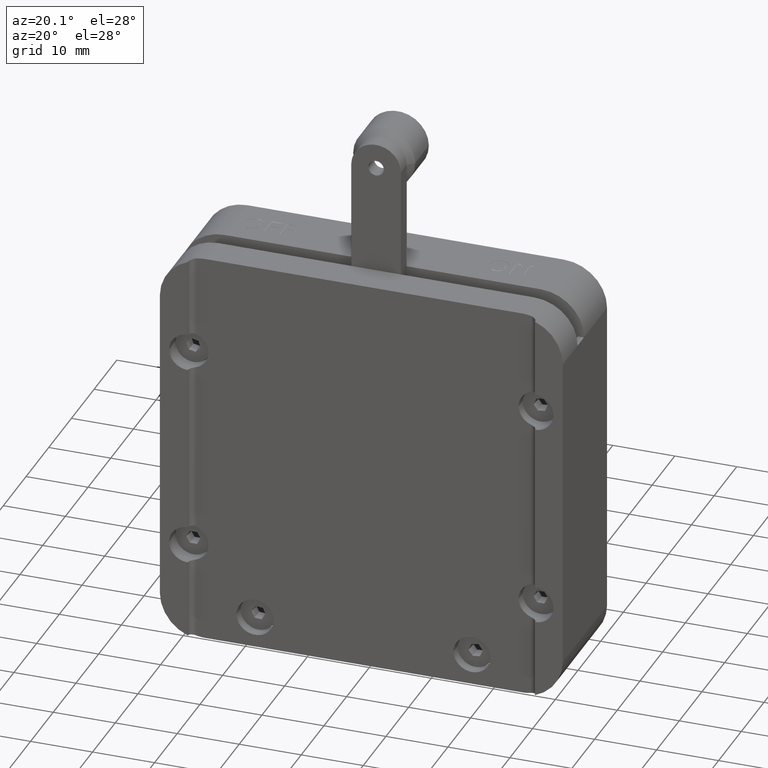
[diagram: clean part render]
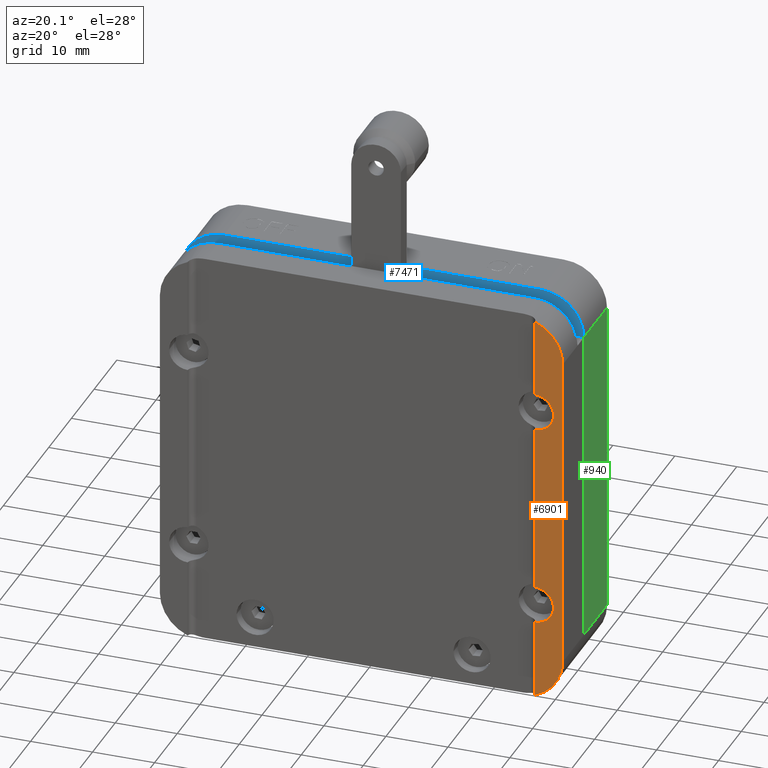
[diagram: same view with three faces highlighted in distinct colors, each labeled with its STEP entity id]
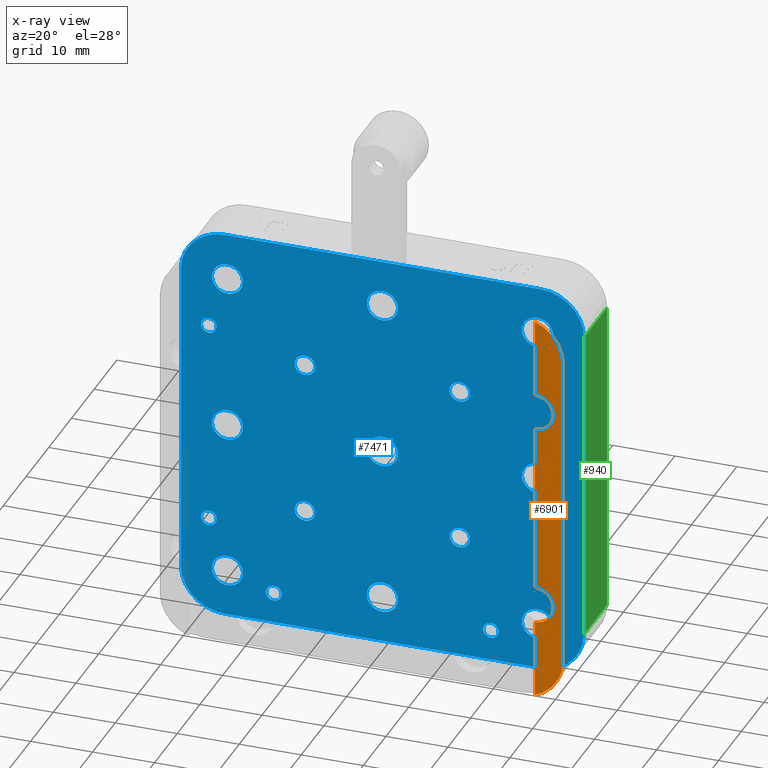
[diagram: x-ray of the same camera — body ghosted, the three highlighted faces saturated]
A machine part, auxiliary view with three faces highlighted in distinct colors.
The next image is the same camera in x-ray (body ghosted, the three faces saturated) — at least one of them is partly hidden behind the body in this view.
Their STEP definitions:

[orange] entity #6901 — the highlighted planar face has unit normal (0, -1, 0).
#67 = DIRECTION ( 'NONE',  ( 1.908195823574487800E-017, -1.000000000000000000, 6.288372600415925700E-018 ) ) ;
#209 = CARTESIAN_POINT ( 'NONE',  ( 28.00000000000000700, -3.500000000000003100, 13.49999999999995700 ) ) ;
#223 = LINE ( 'NONE', #5558, #6699 ) ;
#447 = CARTESIAN_POINT ( 'NONE',  ( 32.50000000000002800, -3.500000000000004400, 32.50000000000000700 ) ) ;
#503 = ORIENTED_EDGE ( 'NONE', *, *, #7377, .F. ) ;
#535 = ORIENTED_EDGE ( 'NONE', *, *, #8684, .T. ) ;
#580 = DIRECTION ( 'NONE',  ( 1.214306433183765000E-017, -1.000000000000000000, 6.288372600415925700E-018 ) ) ;
#623 = DIRECTION ( 'NONE',  ( -7.919758056827704300E-019, 3.252606517456511900E-019, 1.000000000000000000 ) ) ;
#716 = EDGE_LOOP ( 'NONE', ( #503, #3992, #7643, #4133, #1232, #535, #893, #10325, #4793, #4075 ) ) ;
#893 = ORIENTED_EDGE ( 'NONE', *, *, #6305, .F. ) ;
#904 = VERTEX_POINT ( 'NONE', #10563 ) ;
#1040 = CARTESIAN_POINT ( 'NONE',  ( 28.00000000000001400, -3.500000000000002700, -32.49999999999998600 ) ) ;
#1200 = VERTEX_POINT ( 'NONE', #5580 ) ;
#1232 = ORIENTED_EDGE ( 'NONE', *, *, #8308, .F. ) ;
#1236 = VERTEX_POINT ( 'NONE', #3943 ) ;
#1708 = CIRCLE ( 'NONE', #7330, 7.000000000000002700 ) ;
#2159 = CARTESIAN_POINT ( 'NONE',  ( 28.00000000000002500, -3.500000000000002700, -16.49999999999996400 ) ) ;
#2215 = CARTESIAN_POINT ( 'NONE',  ( 28.00000000000001800, -3.500000000000003600, 16.49999999999996400 ) ) ;
#2309 = DIRECTION ( 'NONE',  ( 1.214306433183765000E-017, -1.000000000000000000, 6.288372600415925700E-018 ) ) ;
#2350 = VERTEX_POINT ( 'NONE', #209 ) ;
#2480 = VECTOR ( 'NONE', #623, 1000.000000000000000 ) ;
#2538 = CARTESIAN_POINT ( 'NONE',  ( 25.50000000000001400, -3.500000000000002200, 25.49999999999999600 ) ) ;
#2546 = CIRCLE ( 'NONE', #3184, 3.000000000000009800 ) ;
#2728 = DIRECTION ( 'NONE',  ( -7.919758056827704300E-019, 3.252606517456511900E-019, 1.000000000000000000 ) ) ;
#2998 = AXIS2_PLACEMENT_3D ( 'NONE', #7358, #2309, #8209 ) ;
#3022 = DIRECTION ( 'NONE',  ( 1.000000000000000000, 0.0000000000000000000, 0.0000000000000000000 ) ) ;
#3088 = DIRECTION ( 'NONE',  ( -1.000000000000000000, 0.0000000000000000000, 0.0000000000000000000 ) ) ;
#3184 = AXIS2_PLACEMENT_3D ( 'NONE', #5655, #580, #6488 ) ;
#3308 = EDGE_CURVE ( 'NONE', #904, #2350, #10700, .T. ) ;
#3409 = DIRECTION ( 'NONE',  ( 0.0000000000000000000, 0.0000000000000000000, -1.000000000000000000 ) ) ;
#3791 = LINE ( 'NONE', #447, #7981 ) ;
#3943 = CARTESIAN_POINT ( 'NONE',  ( 28.00000000000001100, -3.500000000000004400, -19.49999999999997200 ) ) ;
#3950 = DIRECTION ( 'NONE',  ( 1.908195823574487800E-017, -1.000000000000000000, 7.047314121155775700E-018 ) ) ;
#3992 = ORIENTED_EDGE ( 'NONE', *, *, #3308, .F. ) ;
#4042 = EDGE_CURVE ( 'NONE', #5192, #1200, #4893, .T. ) ;
#4075 = ORIENTED_EDGE ( 'NONE', *, *, #4042, .F. ) ;
#4133 = ORIENTED_EDGE ( 'NONE', *, *, #9775, .F. ) ;
#4240 = EDGE_CURVE ( 'NONE', #7552, #8188, #1708, .T. ) ;
#4793 = ORIENTED_EDGE ( 'NONE', *, *, #8506, .F. ) ;
#4893 = CIRCLE ( 'NONE', #5868, 3.000000000000009800 ) ;
#4947 = CARTESIAN_POINT ( 'NONE',  ( 31.00000000000002500, -3.500000000000003600, 16.49999999999994700 ) ) ;
#5131 = CARTESIAN_POINT ( 'NONE',  ( 25.50000000000001100, -3.500000000000004000, -25.50000000000001100 ) ) ;
#5192 = VERTEX_POINT ( 'NONE', #4947 ) ;
#5558 = CARTESIAN_POINT ( 'NONE',  ( 28.00000000000001400, -3.500000000000002700, -32.49999999999998600 ) ) ;
#5580 = CARTESIAN_POINT ( 'NONE',  ( 28.00000000000001400, -3.500000000000004000, 19.49999999999997900 ) ) ;
#5643 = EDGE_CURVE ( 'NONE', #8096, #904, #6155, .T. ) ;
#5655 = CARTESIAN_POINT ( 'NONE',  ( 28.00000000000002500, -3.500000000000002700, -16.49999999999996400 ) ) ;
#5679 = AXIS2_PLACEMENT_3D ( 'NONE', #2159, #8061, #3022 ) ;
#5868 = AXIS2_PLACEMENT_3D ( 'NONE', #2215, #8119, #3088 ) ;
#5989 = DIRECTION ( 'NONE',  ( 0.0000000000000000000, 0.0000000000000000000, -1.000000000000000000 ) ) ;
#6004 = FACE_OUTER_BOUND ( 'NONE', #716, .T. ) ;
#6155 = CIRCLE ( 'NONE', #5679, 3.000000000000009800 ) ;
#6256 = VECTOR ( 'NONE', #2728, 1000.000000000000000 ) ;
#6305 = EDGE_CURVE ( 'NONE', #7552, #8207, #3791, .T. ) ;
#6488 = DIRECTION ( 'NONE',  ( 1.000000000000000000, 0.0000000000000000000, 0.0000000000000000000 ) ) ;
#6680 = VERTEX_POINT ( 'NONE', #8572 ) ;
#6699 = VECTOR ( 'NONE', #9808, 1000.000000000000000 ) ;
#6901 = ADVANCED_FACE ( 'NONE', ( #6004 ), #9794, .T. ) ;
#7080 = CARTESIAN_POINT ( 'NONE',  ( 28.00000000000001400, -3.500000000000003600, 32.03834841531100600 ) ) ;
#7330 = AXIS2_PLACEMENT_3D ( 'NONE', #2538, #8426, #3409 ) ;
#7358 = CARTESIAN_POINT ( 'NONE',  ( 28.00000000000001800, -3.500000000000003600, 16.49999999999996400 ) ) ;
#7377 = EDGE_CURVE ( 'NONE', #2350, #5192, #8206, .T. ) ;
#7552 = VERTEX_POINT ( 'NONE', #10105 ) ;
#7643 = ORIENTED_EDGE ( 'NONE', *, *, #5643, .F. ) ;
#7981 = VECTOR ( 'NONE', #10521, 1000.000000000000000 ) ;
#8061 = DIRECTION ( 'NONE',  ( 1.214306433183765000E-017, -1.000000000000000000, 6.288372600415925700E-018 ) ) ;
#8096 = VERTEX_POINT ( 'NONE', #8689 ) ;
#8119 = DIRECTION ( 'NONE',  ( 1.214306433183765000E-017, -1.000000000000000000, 6.288372600415925700E-018 ) ) ;
#8188 = VERTEX_POINT ( 'NONE', #7080 ) ;
#8206 = CIRCLE ( 'NONE', #2998, 3.000000000000009800 ) ;
#8207 = VERTEX_POINT ( 'NONE', #8848 ) ;
#8209 = DIRECTION ( 'NONE',  ( -1.000000000000000000, 0.0000000000000000000, 0.0000000000000000000 ) ) ;
#8308 = EDGE_CURVE ( 'NONE', #6680, #1236, #8947, .T. ) ;
#8426 = DIRECTION ( 'NONE',  ( 1.908195823574487800E-017, -1.000000000000000000, 6.288372600415925700E-018 ) ) ;
#8506 = EDGE_CURVE ( 'NONE', #1200, #8188, #223, .T. ) ;
#8572 = CARTESIAN_POINT ( 'NONE',  ( 28.00000000000001100, -3.500000000000004000, -32.03834841531102700 ) ) ;
#8648 = CIRCLE ( 'NONE', #10063, 7.000000000000002700 ) ;
#8684 = EDGE_CURVE ( 'NONE', #6680, #8207, #8648, .T. ) ;
#8688 = AXIS2_PLACEMENT_3D ( 'NONE', #8984, #3950, #9836 ) ;
#8689 = CARTESIAN_POINT ( 'NONE',  ( 31.00000000000003200, -3.500000000000002700, -16.49999999999996100 ) ) ;
#8848 = CARTESIAN_POINT ( 'NONE',  ( 32.50000000000002800, -3.500000000000006200, -25.50000000000001800 ) ) ;
#8947 = LINE ( 'NONE', #9909, #2480 ) ;
#8984 = CARTESIAN_POINT ( 'NONE',  ( -32.50000000000008500, -3.500000000000004000, 32.49999999999997200 ) ) ;
#9775 = EDGE_CURVE ( 'NONE', #1236, #8096, #2546, .T. ) ;
#9794 = PLANE ( 'NONE',  #8688 ) ;
#9808 = DIRECTION ( 'NONE',  ( -7.919758056827704300E-019, 3.252606517456511900E-019, 1.000000000000000000 ) ) ;
#9836 = DIRECTION ( 'NONE',  ( 7.682588831596500200E-019, -7.047314121155775700E-018, -1.000000000000000000 ) ) ;
#9909 = CARTESIAN_POINT ( 'NONE',  ( 28.00000000000001400, -3.500000000000002700, -32.49999999999998600 ) ) ;
#10063 = AXIS2_PLACEMENT_3D ( 'NONE', #5131, #67, #5989 ) ;
#10105 = CARTESIAN_POINT ( 'NONE',  ( 32.50000000000002800, -3.500000000000002700, 25.49999999999999300 ) ) ;
#10325 = ORIENTED_EDGE ( 'NONE', *, *, #4240, .T. ) ;
#10521 = DIRECTION ( 'NONE',  ( 7.682588831596500200E-019, -7.047314121155775700E-018, -1.000000000000000000 ) ) ;
#10563 = CARTESIAN_POINT ( 'NONE',  ( 28.00000000000001100, -3.500000000000004000, -13.49999999999995600 ) ) ;
#10700 = LINE ( 'NONE', #1040, #6256 ) ;

[blue] entity #7471 — the highlighted planar face has unit normal (0, 1, 0).
#72 = AXIS2_PLACEMENT_3D ( 'NONE', #554, #6470, #1408 ) ;
#103 = DIRECTION ( 'NONE',  ( -0.0000000000000000000, 1.000000000000000000, -0.0000000000000000000 ) ) ;
#105 = CARTESIAN_POINT ( 'NONE',  ( -5.984789395918149000E-014, 5.800000000000002500, -25.00000000000001800 ) ) ;
#107 = VERTEX_POINT ( 'NONE', #7105 ) ;
#108 = CARTESIAN_POINT ( 'NONE',  ( 25.00000000000013500, 5.800000000000002500, 27.49999999999976200 ) ) ;
#133 = AXIS2_PLACEMENT_3D ( 'NONE', #7970, #2928, #8821 ) ;
#143 = EDGE_CURVE ( 'NONE', #4777, #6405, #9358, .T. ) ;
#144 = FACE_BOUND ( 'NONE', #3117, .T. ) ;
#154 = DIRECTION ( 'NONE',  ( -0.0000000000000000000, 1.000000000000000000, -0.0000000000000000000 ) ) ;
#161 = DIRECTION ( 'NONE',  ( -0.0000000000000000000, 1.000000000000000000, -0.0000000000000000000 ) ) ;
#174 = ORIENTED_EDGE ( 'NONE', *, *, #9585, .T. ) ;
#194 = CARTESIAN_POINT ( 'NONE',  ( 12.49999999999989700, 5.800000000000000700, -12.50000000000001800 ) ) ;
#236 = ORIENTED_EDGE ( 'NONE', *, *, #4417, .F. ) ;
#270 = DIRECTION ( 'NONE',  ( 0.0000000000000000000, 0.0000000000000000000, 1.000000000000000000 ) ) ;
#292 = CIRCLE ( 'NONE', #5606, 1.249999999999990700 ) ;
#298 = ORIENTED_EDGE ( 'NONE', *, *, #143, .F. ) ;
#304 = VERTEX_POINT ( 'NONE', #6929 ) ;
#333 = DIRECTION ( 'NONE',  ( -0.0000000000000000000, -1.000000000000000000, -0.0000000000000000000 ) ) ;
#353 = AXIS2_PLACEMENT_3D ( 'NONE', #4328, #10213, #5181 ) ;
#371 = DIRECTION ( 'NONE',  ( 0.0000000000000000000, 0.0000000000000000000, 1.000000000000000000 ) ) ;
#424 = EDGE_CURVE ( 'NONE', #304, #9433, #7914, .T. ) ;
#431 = AXIS2_PLACEMENT_3D ( 'NONE', #9422, #4380, #10266 ) ;
#494 = ORIENTED_EDGE ( 'NONE', *, *, #3044, .F. ) ;
#499 = DIRECTION ( 'NONE',  ( -0.0000000000000000000, 1.000000000000000000, -0.0000000000000000000 ) ) ;
#502 = CIRCLE ( 'NONE', #2587, 1.249999999999990700 ) ;
#512 = AXIS2_PLACEMENT_3D ( 'NONE', #793, #6700, #1647 ) ;
#540 = EDGE_CURVE ( 'NONE', #809, #10042, #5435, .T. ) ;
#544 = VERTEX_POINT ( 'NONE', #7788 ) ;
#554 = CARTESIAN_POINT ( 'NONE',  ( -12.50000000000001400, 5.800000000000000700, -12.50000000000001800 ) ) ;
#581 = DIRECTION ( 'NONE',  ( 0.0000000000000000000, 0.0000000000000000000, -1.000000000000000000 ) ) ;
#589 = EDGE_LOOP ( 'NONE', ( #8693, #8280 ) ) ;
#603 = CARTESIAN_POINT ( 'NONE',  ( 25.00000000000013500, 5.800000000000002500, 24.99999999999976200 ) ) ;
#605 = ORIENTED_EDGE ( 'NONE', *, *, #7667, .F. ) ;
#648 = ORIENTED_EDGE ( 'NONE', *, *, #3692, .T. ) ;
#673 = FACE_OUTER_BOUND ( 'NONE', #6467, .T. ) ;
#675 = VERTEX_POINT ( 'NONE', #9661 ) ;
#702 = EDGE_CURVE ( 'NONE', #3905, #8132, #6985, .T. ) ;
#715 = DIRECTION ( 'NONE',  ( 0.0000000000000000000, 0.0000000000000000000, 1.000000000000000000 ) ) ;
#721 = VERTEX_POINT ( 'NONE', #7807 ) ;
#747 = CARTESIAN_POINT ( 'NONE',  ( -17.50000000000006000, 5.800000000000000700, -27.50000000000001100 ) ) ;
#793 = CARTESIAN_POINT ( 'NONE',  ( -5.984789395918149000E-014, 5.800000000000002500, -1.724140359010620200E-014 ) ) ;
#794 = VERTEX_POINT ( 'NONE', #7928 ) ;
#805 = ORIENTED_EDGE ( 'NONE', *, *, #3515, .T. ) ;
#809 = VERTEX_POINT ( 'NONE', #9621 ) ;
#817 = CIRCLE ( 'NONE', #10515, 2.499999999999998700 ) ;
#850 = CARTESIAN_POINT ( 'NONE',  ( -32.50000000000005700, 5.800000000000002500, 25.50000000000000000 ) ) ;
#852 = VERTEX_POINT ( 'NONE', #2102 ) ;
#891 = LINE ( 'NONE', #2336, #2874 ) ;
#905 = ORIENTED_EDGE ( 'NONE', *, *, #6380, .T. ) ;
#957 = DIRECTION ( 'NONE',  ( 0.0000000000000000000, 0.0000000000000000000, 1.000000000000000000 ) ) ;
#958 = AXIS2_PLACEMENT_3D ( 'NONE', #3599, #9472, #4432 ) ;
#968 = VERTEX_POINT ( 'NONE', #7346 ) ;
#982 = ORIENTED_EDGE ( 'NONE', *, *, #6363, .F. ) ;
#1037 = ORIENTED_EDGE ( 'NONE', *, *, #5896, .T. ) ;
#1056 = EDGE_CURVE ( 'NONE', #10042, #809, #6960, .T. ) ;
#1088 = CARTESIAN_POINT ( 'NONE',  ( -25.50000000000005300, 5.800000000000002500, -32.50000000000000000 ) ) ;
#1093 = EDGE_CURVE ( 'NONE', #6656, #1623, #502, .T. ) ;
#1101 = VERTEX_POINT ( 'NONE', #5349 ) ;
#1127 = DIRECTION ( 'NONE',  ( -1.000000000000000000, 0.0000000000000000000, 1.067522139062650400E-016 ) ) ;
#1204 = DIRECTION ( 'NONE',  ( -0.0000000000000000000, 1.000000000000000000, -0.0000000000000000000 ) ) ;
#1226 = EDGE_LOOP ( 'NONE', ( #3727, #4276 ) ) ;
#1233 = DIRECTION ( 'NONE',  ( -0.0000000000000000000, 1.000000000000000000, -0.0000000000000000000 ) ) ;
#1305 = ORIENTED_EDGE ( 'NONE', *, *, #3221, .F. ) ;
#1320 = ORIENTED_EDGE ( 'NONE', *, *, #5991, .T. ) ;
#1329 = EDGE_CURVE ( 'NONE', #675, #3286, #9855, .T. ) ;
#1356 = AXIS2_PLACEMENT_3D ( 'NONE', #3872, #9748, #4704 ) ;
#1408 = DIRECTION ( 'NONE',  ( 0.0000000000000000000, 0.0000000000000000000, 1.000000000000000000 ) ) ;
#1453 = DIRECTION ( 'NONE',  ( 0.0000000000000000000, 0.0000000000000000000, 1.000000000000000000 ) ) ;
#1461 = AXIS2_PLACEMENT_3D ( 'NONE', #2790, #8680, #3657 ) ;
#1492 = DIRECTION ( 'NONE',  ( -0.0000000000000000000, 1.000000000000000000, -0.0000000000000000000 ) ) ;
#1495 = DIRECTION ( 'NONE',  ( -0.0000000000000000000, -1.000000000000000000, -0.0000000000000000000 ) ) ;
#1501 = ORIENTED_EDGE ( 'NONE', *, *, #1093, .F. ) ;
#1510 = CIRCLE ( 'NONE', #431, 1.649999999999997000 ) ;
#1544 = CARTESIAN_POINT ( 'NONE',  ( 17.49999999999994300, 5.800000000000000700, -27.50000000000001100 ) ) ;
#1583 = ORIENTED_EDGE ( 'NONE', *, *, #3413, .F. ) ;
#1598 = DIRECTION ( 'NONE',  ( 0.0000000000000000000, 0.0000000000000000000, -1.000000000000000000 ) ) ;
#1619 = CARTESIAN_POINT ( 'NONE',  ( -12.50000000000001400, 5.800000000000000700, 14.14999999999998100 ) ) ;
#1623 = VERTEX_POINT ( 'NONE', #2954 ) ;
#1647 = DIRECTION ( 'NONE',  ( 0.0000000000000000000, -0.0000000000000000000, 1.000000000000000000 ) ) ;
#1691 = CIRCLE ( 'NONE', #5008, 2.499999999999998700 ) ;
#1736 = EDGE_CURVE ( 'NONE', #721, #10703, #4570, .T. ) ;
#1751 = CARTESIAN_POINT ( 'NONE',  ( 12.49999999999989700, 5.800000000000000700, -10.85000000000002100 ) ) ;
#1859 = FACE_BOUND ( 'NONE', #6456, .T. ) ;
#1900 = EDGE_LOOP ( 'NONE', ( #805, #1037 ) ) ;
#1949 = ORIENTED_EDGE ( 'NONE', *, *, #4976, .T. ) ;
#1957 = AXIS2_PLACEMENT_3D ( 'NONE', #4100, #9978, #4945 ) ;
#1976 = DIRECTION ( 'NONE',  ( -0.0000000000000000000, -1.000000000000000000, -0.0000000000000000000 ) ) ;
#1982 = EDGE_LOOP ( 'NONE', ( #1305, #2034 ) ) ;
#2034 = ORIENTED_EDGE ( 'NONE', *, *, #10886, .F. ) ;
#2089 = VERTEX_POINT ( 'NONE', #4630 ) ;
#2090 = CIRCLE ( 'NONE', #5807, 1.249999999999987100 ) ;
#2102 = CARTESIAN_POINT ( 'NONE',  ( 25.49999999999995000, 5.800000000000002500, 32.49999999999999300 ) ) ;
#2129 = FACE_BOUND ( 'NONE', #9018, .T. ) ;
#2153 = EDGE_CURVE ( 'NONE', #9285, #3491, #4231, .T. ) ;
#2155 = AXIS2_PLACEMENT_3D ( 'NONE', #4670, #9714, #3847 ) ;
#2173 = ORIENTED_EDGE ( 'NONE', *, *, #1736, .F. ) ;
#2179 = AXIS2_PLACEMENT_3D ( 'NONE', #10349, #5339, #270 ) ;
#2192 = AXIS2_PLACEMENT_3D ( 'NONE', #10787, #5793, #715 ) ;
#2214 = CARTESIAN_POINT ( 'NONE',  ( -32.50000000000005700, 5.800000000000002500, 32.50000000000000000 ) ) ;
#2230 = VERTEX_POINT ( 'NONE', #7661 ) ;
#2277 = CIRCLE ( 'NONE', #6864, 2.499999999999998700 ) ;
#2296 = ORIENTED_EDGE ( 'NONE', *, *, #10337, .F. ) ;
#2336 = CARTESIAN_POINT ( 'NONE',  ( 32.49999999999994300, 5.800000000000002500, 32.49999999999999300 ) ) ;
#2386 = DIRECTION ( 'NONE',  ( 0.0000000000000000000, 0.0000000000000000000, -1.000000000000000000 ) ) ;
#2393 = FACE_BOUND ( 'NONE', #6033, .T. ) ;
#2413 = AXIS2_PLACEMENT_3D ( 'NONE', #6561, #1495, #7398 ) ;
#2531 = ORIENTED_EDGE ( 'NONE', *, *, #702, .T. ) ;
#2574 = CIRCLE ( 'NONE', #5965, 2.499999999999998700 ) ;
#2587 = AXIS2_PLACEMENT_3D ( 'NONE', #7030, #1976, #7875 ) ;
#2649 = CARTESIAN_POINT ( 'NONE',  ( 27.99999999999994300, 5.800000000000000700, -17.75000000000001100 ) ) ;
#2699 = CIRCLE ( 'NONE', #10434, 1.249999999999990700 ) ;
#2752 = CIRCLE ( 'NONE', #4396, 2.499999999999998700 ) ;
#2790 = CARTESIAN_POINT ( 'NONE',  ( 12.49999999999989700, 5.800000000000000700, -12.50000000000001800 ) ) ;
#2826 = CIRCLE ( 'NONE', #8110, 2.499999999999997300 ) ;
#2874 = VECTOR ( 'NONE', #4847, 1000.000000000000000 ) ;
#2919 = FACE_BOUND ( 'NONE', #589, .T. ) ;
#2926 = LINE ( 'NONE', #5897, #6101 ) ;
#2928 = DIRECTION ( 'NONE',  ( -0.0000000000000000000, 1.000000000000000000, -0.0000000000000000000 ) ) ;
#2954 = CARTESIAN_POINT ( 'NONE',  ( 27.99999999999994300, 5.800000000000000700, -15.25000000000003000 ) ) ;
#2958 = CIRCLE ( 'NONE', #10144, 7.000000000000002700 ) ;
#3003 = CIRCLE ( 'NONE', #6696, 1.649999999999997000 ) ;
#3044 = EDGE_CURVE ( 'NONE', #7688, #852, #891, .T. ) ;
#3100 = EDGE_CURVE ( 'NONE', #8087, #544, #7022, .T. ) ;
#3117 = EDGE_LOOP ( 'NONE', ( #1583, #298 ) ) ;
#3124 = ORIENTED_EDGE ( 'NONE', *, *, #1329, .T. ) ;
#3127 = DIRECTION ( 'NONE',  ( -0.0000000000000000000, 1.000000000000000000, -0.0000000000000000000 ) ) ;
#3138 = VERTEX_POINT ( 'NONE', #7460 ) ;
#3162 = VERTEX_POINT ( 'NONE', #8300 ) ;
#3171 = DIRECTION ( 'NONE',  ( -0.0000000000000000000, -1.000000000000000000, -0.0000000000000000000 ) ) ;
#3217 = EDGE_LOOP ( 'NONE', ( #6512, #10056 ) ) ;
#3221 = EDGE_CURVE ( 'NONE', #6543, #5138, #292, .T. ) ;
#3248 = LINE ( 'NONE', #2214, #9687 ) ;
#3286 = VERTEX_POINT ( 'NONE', #108 ) ;
#3335 = CARTESIAN_POINT ( 'NONE',  ( 12.49999999999989700, 5.800000000000000700, 12.49999999999998400 ) ) ;
#3406 = DIRECTION ( 'NONE',  ( -0.0000000000000000000, 1.000000000000000000, -0.0000000000000000000 ) ) ;
#3413 = EDGE_CURVE ( 'NONE', #6405, #4777, #9660, .T. ) ;
#3458 = VERTEX_POINT ( 'NONE', #4977 ) ;
#3491 = VERTEX_POINT ( 'NONE', #1619 ) ;
#3515 = EDGE_CURVE ( 'NONE', #6762, #7305, #2277, .T. ) ;
#3578 = CARTESIAN_POINT ( 'NONE',  ( 12.49999999999989700, 5.800000000000000700, 14.14999999999998100 ) ) ;
#3599 = CARTESIAN_POINT ( 'NONE',  ( 24.99999999999978300, 5.800000000000002500, -25.00000000000001800 ) ) ;
#3632 = CARTESIAN_POINT ( 'NONE',  ( -25.00000000000008200, 5.800000000000002500, 22.49999999999998600 ) ) ;
#3647 = AXIS2_PLACEMENT_3D ( 'NONE', #9766, #4715, #10592 ) ;
#3657 = DIRECTION ( 'NONE',  ( 0.0000000000000000000, 0.0000000000000000000, 1.000000000000000000 ) ) ;
#3692 = EDGE_CURVE ( 'NONE', #3138, #9433, #10166, .T. ) ;
#3727 = ORIENTED_EDGE ( 'NONE', *, *, #8666, .T. ) ;
#3738 = CIRCLE ( 'NONE', #2413, 7.000000000000002700 ) ;
#3752 = DIRECTION ( 'NONE',  ( -0.0000000000000000000, -1.000000000000000000, -0.0000000000000000000 ) ) ;
#3772 = DIRECTION ( 'NONE',  ( -0.0000000000000000000, 1.000000000000000000, -0.0000000000000000000 ) ) ;
#3847 = DIRECTION ( 'NONE',  ( 0.0000000000000000000, 0.0000000000000000000, -1.000000000000000000 ) ) ;
#3872 = CARTESIAN_POINT ( 'NONE',  ( -25.50000000000005300, 5.800000000000002500, -25.50000000000000400 ) ) ;
#3905 = VERTEX_POINT ( 'NONE', #4494 ) ;
#3947 = VERTEX_POINT ( 'NONE', #9619 ) ;
#3951 = AXIS2_PLACEMENT_3D ( 'NONE', #3335, #9219, #4179 ) ;
#3970 = AXIS2_PLACEMENT_3D ( 'NONE', #6271, #1204, #7101 ) ;
#4010 = AXIS2_PLACEMENT_3D ( 'NONE', #194, #154, #6913 ) ;
#4016 = AXIS2_PLACEMENT_3D ( 'NONE', #10656, #5656, #581 ) ;
#4053 = DIRECTION ( 'NONE',  ( -0.0000000000000000000, 1.000000000000000000, -0.0000000000000000000 ) ) ;
#4093 = AXIS2_PLACEMENT_3D ( 'NONE', #603, #6513, #1453 ) ;
#4099 = CARTESIAN_POINT ( 'NONE',  ( -28.00000000000006000, 5.800000000000000700, -16.50000000000002100 ) ) ;
#4100 = CARTESIAN_POINT ( 'NONE',  ( -28.00000000000006000, 5.800000000000000700, -16.50000000000002100 ) ) ;
#4120 = FACE_BOUND ( 'NONE', #1900, .T. ) ;
#4179 = DIRECTION ( 'NONE',  ( 0.0000000000000000000, 0.0000000000000000000, 1.000000000000000000 ) ) ;
#4187 = DIRECTION ( 'NONE',  ( 0.0000000000000000000, 0.0000000000000000000, -1.000000000000000000 ) ) ;
#4197 = EDGE_CURVE ( 'NONE', #5415, #7002, #6988, .T. ) ;
#4231 = CIRCLE ( 'NONE', #7200, 1.649999999999997000 ) ;
#4239 = VERTEX_POINT ( 'NONE', #850 ) ;
#4260 = AXIS2_PLACEMENT_3D ( 'NONE', #6297, #1233, #7126 ) ;
#4276 = ORIENTED_EDGE ( 'NONE', *, *, #4197, .T. ) ;
#4286 = CARTESIAN_POINT ( 'NONE',  ( -28.00000000000006000, 5.800000000000000700, 16.49999999999998600 ) ) ;
#4328 = CARTESIAN_POINT ( 'NONE',  ( 24.99999999999994300, 5.800000000000002500, -1.724140359010620200E-014 ) ) ;
#4369 = FACE_BOUND ( 'NONE', #8952, .T. ) ;
#4371 = ORIENTED_EDGE ( 'NONE', *, *, #5754, .T. ) ;
#4380 = DIRECTION ( 'NONE',  ( -0.0000000000000000000, 1.000000000000000000, -0.0000000000000000000 ) ) ;
#4391 = EDGE_LOOP ( 'NONE', ( #5361, #6930 ) ) ;
#4396 = AXIS2_PLACEMENT_3D ( 'NONE', #105, #6032, #957 ) ;
#4397 = VERTEX_POINT ( 'NONE', #10365 ) ;
#4401 = DIRECTION ( 'NONE',  ( -0.0000000000000000000, 1.000000000000000000, -0.0000000000000000000 ) ) ;
#4417 = EDGE_CURVE ( 'NONE', #3162, #2089, #2090, .T. ) ;
#4423 = CIRCLE ( 'NONE', #133, 2.499999999999998700 ) ;
#4432 = DIRECTION ( 'NONE',  ( 0.0000000000000000000, 0.0000000000000000000, 1.000000000000000000 ) ) ;
#4468 = CARTESIAN_POINT ( 'NONE',  ( -5.984789395918149000E-014, 5.800000000000002500, -1.724140359010620200E-014 ) ) ;
#4494 = CARTESIAN_POINT ( 'NONE',  ( 24.99999999999978300, 5.800000000000002500, -22.50000000000002100 ) ) ;
#4499 = DIRECTION ( 'NONE',  ( -0.0000000000000000000, -1.000000000000000000, -0.0000000000000000000 ) ) ;
#4544 = EDGE_CURVE ( 'NONE', #9543, #8503, #1691, .T. ) ;
#4554 = VERTEX_POINT ( 'NONE', #7635 ) ;
#4556 = CIRCLE ( 'NONE', #353, 2.499999999999998700 ) ;
#4566 = ORIENTED_EDGE ( 'NONE', *, *, #7407, .T. ) ;
#4570 = CIRCLE ( 'NONE', #1957, 1.249999999999990700 ) ;
#4598 = CIRCLE ( 'NONE', #3647, 1.249999999999987100 ) ;
#4608 = CARTESIAN_POINT ( 'NONE',  ( -5.954173225939465200E-014, 5.800000000000002500, -27.50000000000001800 ) ) ;
#4630 = CARTESIAN_POINT ( 'NONE',  ( -17.50000000000006000, 5.800000000000000700, -28.74999999999999600 ) ) ;
#4638 = FACE_BOUND ( 'NONE', #1226, .T. ) ;
#4659 = AXIS2_PLACEMENT_3D ( 'NONE', #8155, #3127, #9001 ) ;
#4670 = CARTESIAN_POINT ( 'NONE',  ( 17.49999999999994300, 5.800000000000000700, -27.50000000000001100 ) ) ;
#4693 = VERTEX_POINT ( 'NONE', #4608 ) ;
#4704 = DIRECTION ( 'NONE',  ( 0.0000000000000000000, 0.0000000000000000000, 1.000000000000000000 ) ) ;
#4715 = DIRECTION ( 'NONE',  ( -0.0000000000000000000, -1.000000000000000000, -0.0000000000000000000 ) ) ;
#4714 = AXIS2_PLACEMENT_3D ( 'NONE', #9441, #4401, #10286 ) ;
#4736 = CARTESIAN_POINT ( 'NONE',  ( -5.954173225939465200E-014, 5.800000000000002500, 22.49999999999998600 ) ) ;
#4776 = CIRCLE ( 'NONE', #9971, 2.499999999999998700 ) ;
#4777 = VERTEX_POINT ( 'NONE', #8987 ) ;
#4797 = AXIS2_PLACEMENT_3D ( 'NONE', #4099, #9976, #4942 ) ;
#4847 = DIRECTION ( 'NONE',  ( 1.000000000000000000, -0.0000000000000000000, -1.067522139062650400E-016 ) ) ;
#4873 = DIRECTION ( 'NONE',  ( -0.0000000000000000000, -1.000000000000000000, -0.0000000000000000000 ) ) ;
#4908 = FACE_BOUND ( 'NONE', #7886, .T. ) ;
#4912 = EDGE_CURVE ( 'NONE', #10703, #721, #8145, .T. ) ;
#4942 = DIRECTION ( 'NONE',  ( 0.0000000000000000000, 0.0000000000000000000, -1.000000000000000000 ) ) ;
#4945 = DIRECTION ( 'NONE',  ( 0.0000000000000000000, 0.0000000000000000000, -1.000000000000000000 ) ) ;
#4955 = VERTEX_POINT ( 'NONE', #10841 ) ;
#4976 = EDGE_CURVE ( 'NONE', #544, #8087, #5118, .T. ) ;
#4977 = CARTESIAN_POINT ( 'NONE',  ( -5.954173225939465200E-014, 5.800000000000002500, -2.500000000000014700 ) ) ;
#5008 = AXIS2_PLACEMENT_3D ( 'NONE', #5172, #103, #6031 ) ;
#5011 = DIRECTION ( 'NONE',  ( -0.0000000000000000000, 1.000000000000000000, -0.0000000000000000000 ) ) ;
#5114 = CARTESIAN_POINT ( 'NONE',  ( 32.49999999999994300, 5.800000000000002500, -32.50000000000000700 ) ) ;
#5118 = CIRCLE ( 'NONE', #8740, 2.499999999999998700 ) ;
#5138 = VERTEX_POINT ( 'NONE', #9725 ) ;
#5142 = DIRECTION ( 'NONE',  ( 0.0000000000000000000, 0.0000000000000000000, -1.000000000000000000 ) ) ;
#5166 = FACE_BOUND ( 'NONE', #6873, .T. ) ;
#5168 = ORIENTED_EDGE ( 'NONE', *, *, #10167, .T. ) ;
#5172 = CARTESIAN_POINT ( 'NONE',  ( -5.984789395918149000E-014, 5.800000000000002500, 24.99999999999998600 ) ) ;
#5181 = DIRECTION ( 'NONE',  ( 0.0000000000000000000, 0.0000000000000000000, 1.000000000000000000 ) ) ;
#5236 = CARTESIAN_POINT ( 'NONE',  ( -25.00000000000006000, 5.800000000000002500, -1.724140359010620200E-014 ) ) ;
#5339 = DIRECTION ( 'NONE',  ( -0.0000000000000000000, 1.000000000000000000, -0.0000000000000000000 ) ) ;
#5340 = DIRECTION ( 'NONE',  ( 0.0000000000000000000, 0.0000000000000000000, 1.000000000000000000 ) ) ;
#5349 = CARTESIAN_POINT ( 'NONE',  ( 24.99999999999994300, 5.800000000000002500, 2.499999999999981300 ) ) ;
#5361 = ORIENTED_EDGE ( 'NONE', *, *, #1056, .T. ) ;
#5406 = CARTESIAN_POINT ( 'NONE',  ( 25.49999999999995000, 5.800000000000002500, -25.50000000000001100 ) ) ;
#5410 = CIRCLE ( 'NONE', #10597, 6.999999999999999100 ) ;
#5415 = VERTEX_POINT ( 'NONE', #8678 ) ;
#5435 = CIRCLE ( 'NONE', #4010, 1.649999999999997000 ) ;
#5448 = DIRECTION ( 'NONE',  ( -0.0000000000000000000, 1.000000000000000000, -0.0000000000000000000 ) ) ;
#5466 = CIRCLE ( 'NONE', #10174, 1.649999999999997000 ) ;
#5490 = EDGE_CURVE ( 'NONE', #3458, #968, #8633, .T. ) ;
#5577 = CARTESIAN_POINT ( 'NONE',  ( -12.50000000000001400, 5.800000000000000700, 12.49999999999998400 ) ) ;
#5606 = AXIS2_PLACEMENT_3D ( 'NONE', #4286, #10168, #5142 ) ;
#5615 = ORIENTED_EDGE ( 'NONE', *, *, #7313, .T. ) ;
#5656 = DIRECTION ( 'NONE',  ( -0.0000000000000000000, -1.000000000000000000, -0.0000000000000000000 ) ) ;
#5754 = EDGE_CURVE ( 'NONE', #1101, #4397, #4556, .T. ) ;
#5793 = DIRECTION ( 'NONE',  ( -0.0000000000000000000, 1.000000000000000000, -0.0000000000000000000 ) ) ;
#5807 = AXIS2_PLACEMENT_3D ( 'NONE', #747, #6651, #1598 ) ;
#5876 = ORIENTED_EDGE ( 'NONE', *, *, #2153, .T. ) ;
#5896 = EDGE_CURVE ( 'NONE', #7305, #6762, #4423, .T. ) ;
#5897 = CARTESIAN_POINT ( 'NONE',  ( 32.49999999999994300, 5.800000000000002500, 32.49999999999999300 ) ) ;
#5965 = AXIS2_PLACEMENT_3D ( 'NONE', #10450, #5448, #371 ) ;
#5991 = EDGE_CURVE ( 'NONE', #4554, #107, #9043, .T. ) ;
#6031 = DIRECTION ( 'NONE',  ( 0.0000000000000000000, 0.0000000000000000000, 1.000000000000000000 ) ) ;
#6032 = DIRECTION ( 'NONE',  ( -0.0000000000000000000, 1.000000000000000000, -0.0000000000000000000 ) ) ;
#6033 = EDGE_LOOP ( 'NONE', ( #9839, #5876 ) ) ;
#6087 = DIRECTION ( 'NONE',  ( 0.0000000000000000000, 0.0000000000000000000, 1.000000000000000000 ) ) ;
#6101 = VECTOR ( 'NONE', #4187, 1000.000000000000000 ) ;
#6139 = CIRCLE ( 'NONE', #4714, 2.499999999999998700 ) ;
#6215 = CIRCLE ( 'NONE', #8411, 1.249999999999990700 ) ;
#6236 = EDGE_CURVE ( 'NONE', #8132, #3905, #2574, .T. ) ;
#6243 = DIRECTION ( 'NONE',  ( 0.0000000000000000000, 0.0000000000000000000, 1.000000000000000000 ) ) ;
#6271 = CARTESIAN_POINT ( 'NONE',  ( -5.984789395918149000E-014, 5.800000000000002500, -1.724140359010620200E-014 ) ) ;
#6297 = CARTESIAN_POINT ( 'NONE',  ( 24.99999999999994300, 5.800000000000002500, -1.724140359010620200E-014 ) ) ;
#6361 = FACE_BOUND ( 'NONE', #3217, .T. ) ;
#6363 = EDGE_CURVE ( 'NONE', #3138, #4239, #3248, .T. ) ;
#6380 = EDGE_CURVE ( 'NONE', #8112, #3947, #9955, .T. ) ;
#6405 = VERTEX_POINT ( 'NONE', #8149 ) ;
#6414 = DIRECTION ( 'NONE',  ( 0.0000000000000000000, 0.0000000000000000000, 1.000000000000000000 ) ) ;
#6456 = EDGE_LOOP ( 'NONE', ( #10457, #7438 ) ) ;
#6467 = EDGE_LOOP ( 'NONE', ( #2296, #4566, #494, #174, #982, #648, #7065, #8326 ) ) ;
#6468 = EDGE_CURVE ( 'NONE', #2230, #10476, #2699, .T. ) ;
#6470 = DIRECTION ( 'NONE',  ( -0.0000000000000000000, 1.000000000000000000, -0.0000000000000000000 ) ) ;
#6512 = ORIENTED_EDGE ( 'NONE', *, *, #7949, .T. ) ;
#6513 = DIRECTION ( 'NONE',  ( -0.0000000000000000000, 1.000000000000000000, -0.0000000000000000000 ) ) ;
#6518 = CARTESIAN_POINT ( 'NONE',  ( -25.00000000000006000, 5.800000000000002500, -2.500000000000016000 ) ) ;
#6543 = VERTEX_POINT ( 'NONE', #10781 ) ;
#6559 = CARTESIAN_POINT ( 'NONE',  ( -25.00000000000008200, 5.800000000000002500, -25.00000000000001800 ) ) ;
#6561 = CARTESIAN_POINT ( 'NONE',  ( 25.49999999999995000, 5.800000000000002500, 25.49999999999999300 ) ) ;
#6607 = CIRCLE ( 'NONE', #4260, 2.499999999999998700 ) ;
#6625 = FACE_BOUND ( 'NONE', #1982, .T. ) ;
#6651 = DIRECTION ( 'NONE',  ( -0.0000000000000000000, -1.000000000000000000, -0.0000000000000000000 ) ) ;
#6655 = EDGE_CURVE ( 'NONE', #3947, #8112, #1510, .T. ) ;
#6656 = VERTEX_POINT ( 'NONE', #2649 ) ;
#6696 = AXIS2_PLACEMENT_3D ( 'NONE', #8421, #3406, #9282 ) ;
#6700 = DIRECTION ( 'NONE',  ( 0.0000000000000000000, 1.000000000000000000, 0.0000000000000000000 ) ) ;
#6762 = VERTEX_POINT ( 'NONE', #9457 ) ;
#6864 = AXIS2_PLACEMENT_3D ( 'NONE', #5236, #161, #6087 ) ;
#6873 = EDGE_LOOP ( 'NONE', ( #2531, #8596 ) ) ;
#6906 = EDGE_LOOP ( 'NONE', ( #1949, #8364 ) ) ;
#6913 = DIRECTION ( 'NONE',  ( 0.0000000000000000000, 0.0000000000000000000, 1.000000000000000000 ) ) ;
#6929 = CARTESIAN_POINT ( 'NONE',  ( 25.49999999999995000, 5.800000000000002500, -32.50000000000000700 ) ) ;
#6930 = ORIENTED_EDGE ( 'NONE', *, *, #540, .T. ) ;
#6960 = CIRCLE ( 'NONE', #1461, 1.649999999999997000 ) ;
#6985 = CIRCLE ( 'NONE', #958, 2.499999999999998700 ) ;
#6988 = CIRCLE ( 'NONE', #3951, 1.649999999999997000 ) ;
#7002 = VERTEX_POINT ( 'NONE', #3578 ) ;
#7022 = CIRCLE ( 'NONE', #2192, 2.499999999999998700 ) ;
#7030 = CARTESIAN_POINT ( 'NONE',  ( 27.99999999999994300, 5.800000000000000700, -16.50000000000002100 ) ) ;
#7051 = EDGE_CURVE ( 'NONE', #3491, #9285, #5466, .T. ) ;
#7065 = ORIENTED_EDGE ( 'NONE', *, *, #424, .F. ) ;
#7070 = AXIS2_PLACEMENT_3D ( 'NONE', #1544, #7443, #2386 ) ;
#7101 = DIRECTION ( 'NONE',  ( 0.0000000000000000000, 0.0000000000000000000, 1.000000000000000000 ) ) ;
#7105 = CARTESIAN_POINT ( 'NONE',  ( -25.00000000000008200, 5.800000000000002500, -22.50000000000002100 ) ) ;
#7126 = DIRECTION ( 'NONE',  ( 0.0000000000000000000, 0.0000000000000000000, 1.000000000000000000 ) ) ;
#7200 = AXIS2_PLACEMENT_3D ( 'NONE', #5577, #499, #6414 ) ;
#7272 = DIRECTION ( 'NONE',  ( -0.0000000000000000000, -0.0000000000000000000, 1.000000000000000000 ) ) ;
#7305 = VERTEX_POINT ( 'NONE', #6518 ) ;
#7313 = EDGE_CURVE ( 'NONE', #107, #4554, #4776, .T. ) ;
#7342 = EDGE_CURVE ( 'NONE', #4693, #10445, #817, .T. ) ;
#7346 = CARTESIAN_POINT ( 'NONE',  ( -5.984789395918149000E-014, 5.800000000000002500, 2.499999999999980000 ) ) ;
#7396 = DIRECTION ( 'NONE',  ( 0.0000000000000000000, 0.0000000000000000000, 1.000000000000000000 ) ) ;
#7398 = DIRECTION ( 'NONE',  ( 0.0000000000000000000, 0.0000000000000000000, 1.000000000000000000 ) ) ;
#7403 = FACE_BOUND ( 'NONE', #7992, .T. ) ;
#7407 = EDGE_CURVE ( 'NONE', #794, #852, #3738, .T. ) ;
#7438 = ORIENTED_EDGE ( 'NONE', *, *, #4544, .T. ) ;
#7443 = DIRECTION ( 'NONE',  ( -0.0000000000000000000, -1.000000000000000000, -0.0000000000000000000 ) ) ;
#7460 = CARTESIAN_POINT ( 'NONE',  ( -32.50000000000005700, 5.800000000000002500, -25.50000000000000400 ) ) ;
#7471 = ADVANCED_FACE ( 'NONE', ( #4908, #9132, #4638, #2393, #144, #8859, #6625, #4369, #2129, #10810, #8580, #6361, #4120, #1859, #10549, #9630, #7403, #5166, #2919, #673 ), #7506, .F. ) ;
#7506 = PLANE ( 'NONE',  #512 ) ;
#7589 = CIRCLE ( 'NONE', #4016, 1.249999999999990700 ) ;
#7635 = CARTESIAN_POINT ( 'NONE',  ( -25.00000000000008200, 5.800000000000002500, -27.50000000000001800 ) ) ;
#7655 = VECTOR ( 'NONE', #1127, 1000.000000000000000 ) ;
#7661 = CARTESIAN_POINT ( 'NONE',  ( 27.99999999999994300, 5.800000000000000700, 17.74999999999997900 ) ) ;
#7666 = ORIENTED_EDGE ( 'NONE', *, *, #4912, .F. ) ;
#7667 = EDGE_CURVE ( 'NONE', #1623, #6656, #6215, .T. ) ;
#7688 = VERTEX_POINT ( 'NONE', #9583 ) ;
#7693 = EDGE_CURVE ( 'NONE', #4397, #1101, #6607, .T. ) ;
#7788 = CARTESIAN_POINT ( 'NONE',  ( -25.00000000000008200, 5.800000000000002500, 27.49999999999998200 ) ) ;
#7807 = CARTESIAN_POINT ( 'NONE',  ( -28.00000000000006000, 5.800000000000000700, -17.75000000000001100 ) ) ;
#7813 = CARTESIAN_POINT ( 'NONE',  ( 27.99999999999994300, 5.800000000000000700, 15.24999999999999600 ) ) ;
#7875 = DIRECTION ( 'NONE',  ( 0.0000000000000000000, 0.0000000000000000000, -1.000000000000000000 ) ) ;
#7886 = EDGE_LOOP ( 'NONE', ( #9946, #905 ) ) ;
#7914 = LINE ( 'NONE', #5114, #7655 ) ;
#7928 = CARTESIAN_POINT ( 'NONE',  ( 32.49999999999994300, 5.800000000000002500, 25.49999999999999300 ) ) ;
#7949 = EDGE_CURVE ( 'NONE', #10445, #4693, #2752, .T. ) ;
#7970 = CARTESIAN_POINT ( 'NONE',  ( -25.00000000000006000, 5.800000000000002500, -1.724140359010620200E-014 ) ) ;
#7992 = EDGE_LOOP ( 'NONE', ( #4371, #9411 ) ) ;
#8087 = VERTEX_POINT ( 'NONE', #3632 ) ;
#8110 = AXIS2_PLACEMENT_3D ( 'NONE', #4468, #10350, #5340 ) ;
#8112 = VERTEX_POINT ( 'NONE', #9539 ) ;
#8115 = CARTESIAN_POINT ( 'NONE',  ( -5.984789395918149000E-014, 5.800000000000002500, 27.49999999999998200 ) ) ;
#8132 = VERTEX_POINT ( 'NONE', #8727 ) ;
#8134 = EDGE_CURVE ( 'NONE', #304, #4955, #5410, .T. ) ;
#8145 = CIRCLE ( 'NONE', #4797, 1.249999999999990700 ) ;
#8149 = CARTESIAN_POINT ( 'NONE',  ( 17.49999999999994300, 5.800000000000000700, -28.74999999999999600 ) ) ;
#8155 = CARTESIAN_POINT ( 'NONE',  ( -25.00000000000008200, 5.800000000000002500, -25.00000000000001800 ) ) ;
#8204 = CARTESIAN_POINT ( 'NONE',  ( -25.50000000000005300, 5.800000000000002500, 25.50000000000000000 ) ) ;
#8231 = EDGE_CURVE ( 'NONE', #2089, #3162, #4598, .T. ) ;
#8280 = ORIENTED_EDGE ( 'NONE', *, *, #5490, .T. ) ;
#8300 = CARTESIAN_POINT ( 'NONE',  ( -17.50000000000006000, 5.800000000000000700, -26.25000000000002500 ) ) ;
#8326 = ORIENTED_EDGE ( 'NONE', *, *, #8134, .T. ) ;
#8327 = AXIS2_PLACEMENT_3D ( 'NONE', #8775, #3752, #9618 ) ;
#8364 = ORIENTED_EDGE ( 'NONE', *, *, #3100, .T. ) ;
#8411 = AXIS2_PLACEMENT_3D ( 'NONE', #9549, #4499, #10381 ) ;
#8421 = CARTESIAN_POINT ( 'NONE',  ( 12.49999999999989700, 5.800000000000000700, 12.49999999999998400 ) ) ;
#8503 = VERTEX_POINT ( 'NONE', #8115 ) ;
#8580 = FACE_BOUND ( 'NONE', #8743, .T. ) ;
#8583 = CIRCLE ( 'NONE', #2179, 2.499999999999998700 ) ;
#8596 = ORIENTED_EDGE ( 'NONE', *, *, #6236, .T. ) ;
#8609 = EDGE_LOOP ( 'NONE', ( #5168, #3124 ) ) ;
#8633 = CIRCLE ( 'NONE', #3970, 2.499999999999997300 ) ;
#8666 = EDGE_CURVE ( 'NONE', #7002, #5415, #3003, .T. ) ;
#8678 = CARTESIAN_POINT ( 'NONE',  ( 12.49999999999989700, 5.800000000000000700, 10.84999999999998700 ) ) ;
#8680 = DIRECTION ( 'NONE',  ( -0.0000000000000000000, 1.000000000000000000, -0.0000000000000000000 ) ) ;
#8693 = ORIENTED_EDGE ( 'NONE', *, *, #9439, .T. ) ;
#8727 = CARTESIAN_POINT ( 'NONE',  ( 24.99999999999978300, 5.800000000000002500, -27.50000000000001800 ) ) ;
#8740 = AXIS2_PLACEMENT_3D ( 'NONE', #10037, #5011, #10878 ) ;
#8743 = EDGE_LOOP ( 'NONE', ( #5615, #1320 ) ) ;
#8775 = CARTESIAN_POINT ( 'NONE',  ( -28.00000000000006000, 5.800000000000000700, 16.49999999999998600 ) ) ;
#8792 = CARTESIAN_POINT ( 'NONE',  ( -12.50000000000001400, 5.800000000000000700, 12.49999999999998400 ) ) ;
#8821 = DIRECTION ( 'NONE',  ( 0.0000000000000000000, 0.0000000000000000000, 1.000000000000000000 ) ) ;
#8859 = FACE_BOUND ( 'NONE', #8963, .T. ) ;
#8952 = EDGE_LOOP ( 'NONE', ( #9937, #236 ) ) ;
#8963 = EDGE_LOOP ( 'NONE', ( #10579, #10405 ) ) ;
#8987 = CARTESIAN_POINT ( 'NONE',  ( 17.49999999999994300, 5.800000000000000700, -26.25000000000002500 ) ) ;
#8996 = CARTESIAN_POINT ( 'NONE',  ( -28.00000000000006000, 5.800000000000000700, -15.25000000000003000 ) ) ;
#9001 = DIRECTION ( 'NONE',  ( 0.0000000000000000000, 0.0000000000000000000, 1.000000000000000000 ) ) ;
#9018 = EDGE_LOOP ( 'NONE', ( #2173, #7666 ) ) ;
#9043 = CIRCLE ( 'NONE', #4659, 2.499999999999998700 ) ;
#9054 = DIRECTION ( 'NONE',  ( 0.0000000000000000000, 0.0000000000000000000, 1.000000000000000000 ) ) ;
#9093 = CARTESIAN_POINT ( 'NONE',  ( -5.984789395918149000E-014, 5.800000000000002500, -25.00000000000001800 ) ) ;
#9132 = FACE_BOUND ( 'NONE', #4391, .T. ) ;
#9142 = EDGE_CURVE ( 'NONE', #10476, #2230, #7589, .T. ) ;
#9219 = DIRECTION ( 'NONE',  ( -0.0000000000000000000, 1.000000000000000000, -0.0000000000000000000 ) ) ;
#9282 = DIRECTION ( 'NONE',  ( 0.0000000000000000000, 0.0000000000000000000, 1.000000000000000000 ) ) ;
#9285 = VERTEX_POINT ( 'NONE', #10873 ) ;
#9358 = CIRCLE ( 'NONE', #2155, 1.249999999999987100 ) ;
#9411 = ORIENTED_EDGE ( 'NONE', *, *, #7693, .T. ) ;
#9412 = EDGE_CURVE ( 'NONE', #8503, #9543, #6139, .T. ) ;
#9422 = CARTESIAN_POINT ( 'NONE',  ( -12.50000000000001400, 5.800000000000000700, -12.50000000000001800 ) ) ;
#9433 = VERTEX_POINT ( 'NONE', #1088 ) ;
#9439 = EDGE_CURVE ( 'NONE', #968, #3458, #2826, .T. ) ;
#9441 = CARTESIAN_POINT ( 'NONE',  ( -5.984789395918149000E-014, 5.800000000000002500, 24.99999999999998600 ) ) ;
#9457 = CARTESIAN_POINT ( 'NONE',  ( -25.00000000000006000, 5.800000000000002500, 2.499999999999981300 ) ) ;
#9467 = CARTESIAN_POINT ( 'NONE',  ( -5.984789395918149000E-014, 5.800000000000002500, -22.50000000000002100 ) ) ;
#9472 = DIRECTION ( 'NONE',  ( -0.0000000000000000000, 1.000000000000000000, -0.0000000000000000000 ) ) ;
#9539 = CARTESIAN_POINT ( 'NONE',  ( -12.50000000000001400, 5.800000000000000700, -14.15000000000001500 ) ) ;
#9543 = VERTEX_POINT ( 'NONE', #4736 ) ;
#9549 = CARTESIAN_POINT ( 'NONE',  ( 27.99999999999994300, 5.800000000000000700, -16.50000000000002100 ) ) ;
#9583 = CARTESIAN_POINT ( 'NONE',  ( -25.50000000000005300, 5.800000000000002500, 32.50000000000000000 ) ) ;
#9585 = EDGE_CURVE ( 'NONE', #7688, #4239, #2958, .T. ) ;
#9618 = DIRECTION ( 'NONE',  ( 0.0000000000000000000, 0.0000000000000000000, -1.000000000000000000 ) ) ;
#9619 = CARTESIAN_POINT ( 'NONE',  ( -12.50000000000001400, 5.800000000000000700, -10.85000000000002100 ) ) ;
#9621 = CARTESIAN_POINT ( 'NONE',  ( 12.49999999999989700, 5.800000000000000700, -14.15000000000001500 ) ) ;
#9630 = FACE_BOUND ( 'NONE', #8609, .T. ) ;
#9634 = DIRECTION ( 'NONE',  ( 0.0000000000000000000, 0.0000000000000000000, 1.000000000000000000 ) ) ;
#9660 = CIRCLE ( 'NONE', #7070, 1.249999999999987100 ) ;
#9661 = CARTESIAN_POINT ( 'NONE',  ( 25.00000000000013500, 5.800000000000002500, 22.49999999999976200 ) ) ;
#9687 = VECTOR ( 'NONE', #7272, 1000.000000000000000 ) ;
#9714 = DIRECTION ( 'NONE',  ( -0.0000000000000000000, -1.000000000000000000, -0.0000000000000000000 ) ) ;
#9725 = CARTESIAN_POINT ( 'NONE',  ( -28.00000000000006000, 5.800000000000000700, 17.74999999999997900 ) ) ;
#9748 = DIRECTION ( 'NONE',  ( -0.0000000000000000000, -1.000000000000000000, -0.0000000000000000000 ) ) ;
#9766 = CARTESIAN_POINT ( 'NONE',  ( -17.50000000000006000, 5.800000000000000700, -27.50000000000001100 ) ) ;
#9839 = ORIENTED_EDGE ( 'NONE', *, *, #7051, .T. ) ;
#9855 = CIRCLE ( 'NONE', #4093, 2.499999999999998700 ) ;
#9867 = EDGE_LOOP ( 'NONE', ( #1501, #605 ) ) ;
#9915 = CARTESIAN_POINT ( 'NONE',  ( 27.99999999999994300, 5.800000000000000700, 16.49999999999998600 ) ) ;
#9928 = DIRECTION ( 'NONE',  ( 0.0000000000000000000, 0.0000000000000000000, 1.000000000000000000 ) ) ;
#9937 = ORIENTED_EDGE ( 'NONE', *, *, #8231, .F. ) ;
#9946 = ORIENTED_EDGE ( 'NONE', *, *, #6655, .T. ) ;
#9955 = CIRCLE ( 'NONE', #72, 1.649999999999997000 ) ;
#9971 = AXIS2_PLACEMENT_3D ( 'NONE', #6559, #1492, #7396 ) ;
#9976 = DIRECTION ( 'NONE',  ( -0.0000000000000000000, -1.000000000000000000, -0.0000000000000000000 ) ) ;
#9978 = DIRECTION ( 'NONE',  ( -0.0000000000000000000, -1.000000000000000000, -0.0000000000000000000 ) ) ;
#10037 = CARTESIAN_POINT ( 'NONE',  ( -25.00000000000008200, 5.800000000000002500, 24.99999999999998600 ) ) ;
#10042 = VERTEX_POINT ( 'NONE', #1751 ) ;
#10056 = ORIENTED_EDGE ( 'NONE', *, *, #7342, .T. ) ;
#10143 = CIRCLE ( 'NONE', #8327, 1.249999999999990700 ) ;
#10144 = AXIS2_PLACEMENT_3D ( 'NONE', #8204, #3171, #9054 ) ;
#10166 = CIRCLE ( 'NONE', #1356, 6.999999999999999100 ) ;
#10167 = EDGE_CURVE ( 'NONE', #3286, #675, #8583, .T. ) ;
#10168 = DIRECTION ( 'NONE',  ( -0.0000000000000000000, -1.000000000000000000, -0.0000000000000000000 ) ) ;
#10174 = AXIS2_PLACEMENT_3D ( 'NONE', #8792, #3772, #9634 ) ;
#10213 = DIRECTION ( 'NONE',  ( -0.0000000000000000000, 1.000000000000000000, -0.0000000000000000000 ) ) ;
#10266 = DIRECTION ( 'NONE',  ( 0.0000000000000000000, 0.0000000000000000000, 1.000000000000000000 ) ) ;
#10286 = DIRECTION ( 'NONE',  ( 0.0000000000000000000, 0.0000000000000000000, 1.000000000000000000 ) ) ;
#10337 = EDGE_CURVE ( 'NONE', #794, #4955, #2926, .T. ) ;
#10349 = CARTESIAN_POINT ( 'NONE',  ( 25.00000000000013500, 5.800000000000002500, 24.99999999999976200 ) ) ;
#10350 = DIRECTION ( 'NONE',  ( -0.0000000000000000000, 1.000000000000000000, -0.0000000000000000000 ) ) ;
#10365 = CARTESIAN_POINT ( 'NONE',  ( 24.99999999999994300, 5.800000000000002500, -2.500000000000016000 ) ) ;
#10381 = DIRECTION ( 'NONE',  ( 0.0000000000000000000, 0.0000000000000000000, -1.000000000000000000 ) ) ;
#10405 = ORIENTED_EDGE ( 'NONE', *, *, #6468, .F. ) ;
#10434 = AXIS2_PLACEMENT_3D ( 'NONE', #9915, #4873, #10748 ) ;
#10445 = VERTEX_POINT ( 'NONE', #9467 ) ;
#10450 = CARTESIAN_POINT ( 'NONE',  ( 24.99999999999978300, 5.800000000000002500, -25.00000000000001800 ) ) ;
#10457 = ORIENTED_EDGE ( 'NONE', *, *, #9412, .T. ) ;
#10476 = VERTEX_POINT ( 'NONE', #7813 ) ;
#10515 = AXIS2_PLACEMENT_3D ( 'NONE', #9093, #4053, #9928 ) ;
#10549 = FACE_BOUND ( 'NONE', #6906, .T. ) ;
#10579 = ORIENTED_EDGE ( 'NONE', *, *, #9142, .F. ) ;
#10592 = DIRECTION ( 'NONE',  ( 0.0000000000000000000, 0.0000000000000000000, -1.000000000000000000 ) ) ;
#10597 = AXIS2_PLACEMENT_3D ( 'NONE', #5406, #333, #6243 ) ;
#10656 = CARTESIAN_POINT ( 'NONE',  ( 27.99999999999994300, 5.800000000000000700, 16.49999999999998600 ) ) ;
#10703 = VERTEX_POINT ( 'NONE', #8996 ) ;
#10748 = DIRECTION ( 'NONE',  ( 0.0000000000000000000, 0.0000000000000000000, -1.000000000000000000 ) ) ;
#10781 = CARTESIAN_POINT ( 'NONE',  ( -28.00000000000006000, 5.800000000000000700, 15.24999999999999600 ) ) ;
#10787 = CARTESIAN_POINT ( 'NONE',  ( -25.00000000000008200, 5.800000000000002500, 24.99999999999998600 ) ) ;
#10810 = FACE_BOUND ( 'NONE', #9867, .T. ) ;
#10841 = CARTESIAN_POINT ( 'NONE',  ( 32.49999999999994300, 5.800000000000002500, -25.50000000000001100 ) ) ;
#10873 = CARTESIAN_POINT ( 'NONE',  ( -12.50000000000001400, 5.800000000000000700, 10.84999999999998700 ) ) ;
#10878 = DIRECTION ( 'NONE',  ( 0.0000000000000000000, 0.0000000000000000000, 1.000000000000000000 ) ) ;
#10886 = EDGE_CURVE ( 'NONE', #5138, #6543, #10143, .T. ) ;

[green] entity #940 — the highlighted planar face has unit normal (-1, 0, 0).
#165 = DIRECTION ( 'NONE',  ( 0.0000000000000000000, -1.000000000000000000, 0.0000000000000000000 ) ) ;
#251 = VECTOR ( 'NONE', #6505, 1000.000000000000000 ) ;
#315 = VERTEX_POINT ( 'NONE', #9418 ) ;
#597 = DIRECTION ( 'NONE',  ( 0.0000000000000000000, 0.0000000000000000000, 1.000000000000000000 ) ) ;
#599 = CARTESIAN_POINT ( 'NONE',  ( 32.49999999999994300, 16.50000000000000000, -25.50000000000001100 ) ) ;
#794 = VERTEX_POINT ( 'NONE', #7928 ) ;
#847 = EDGE_LOOP ( 'NONE', ( #8621, #3396, #6835, #4282 ) ) ;
#940 = ADVANCED_FACE ( 'NONE', ( #5004 ), #6400, .F. ) ;
#1940 = CARTESIAN_POINT ( 'NONE',  ( 32.49999999999994300, 16.00000000000002800, -25.50000000000001100 ) ) ;
#2137 = DIRECTION ( 'NONE',  ( 0.0000000000000000000, -0.0000000000000000000, 1.000000000000000000 ) ) ;
#2926 = LINE ( 'NONE', #5897, #6101 ) ;
#3396 = ORIENTED_EDGE ( 'NONE', *, *, #8469, .T. ) ;
#3541 = VECTOR ( 'NONE', #2137, 1000.000000000000000 ) ;
#3818 = LINE ( 'NONE', #9729, #3541 ) ;
#4187 = DIRECTION ( 'NONE',  ( 0.0000000000000000000, 0.0000000000000000000, -1.000000000000000000 ) ) ;
#4282 = ORIENTED_EDGE ( 'NONE', *, *, #10337, .T. ) ;
#4955 = VERTEX_POINT ( 'NONE', #10841 ) ;
#5004 = FACE_OUTER_BOUND ( 'NONE', #847, .T. ) ;
#5366 = EDGE_CURVE ( 'NONE', #315, #794, #6556, .T. ) ;
#5676 = DIRECTION ( 'NONE',  ( -1.000000000000000000, 0.0000000000000000000, 0.0000000000000000000 ) ) ;
#5897 = CARTESIAN_POINT ( 'NONE',  ( 32.49999999999994300, 5.800000000000002500, 32.49999999999999300 ) ) ;
#6101 = VECTOR ( 'NONE', #4187, 1000.000000000000000 ) ;
#6400 = PLANE ( 'NONE',  #9227 ) ;
#6505 = DIRECTION ( 'NONE',  ( -0.0000000000000000000, 1.000000000000000000, -0.0000000000000000000 ) ) ;
#6556 = LINE ( 'NONE', #10293, #10738 ) ;
#6727 = LINE ( 'NONE', #599, #251 ) ;
#6835 = ORIENTED_EDGE ( 'NONE', *, *, #5366, .T. ) ;
#7747 = EDGE_CURVE ( 'NONE', #4955, #8896, #6727, .T. ) ;
#7928 = CARTESIAN_POINT ( 'NONE',  ( 32.49999999999994300, 5.800000000000002500, 25.49999999999999300 ) ) ;
#8469 = EDGE_CURVE ( 'NONE', #8896, #315, #3818, .T. ) ;
#8621 = ORIENTED_EDGE ( 'NONE', *, *, #7747, .T. ) ;
#8896 = VERTEX_POINT ( 'NONE', #1940 ) ;
#9227 = AXIS2_PLACEMENT_3D ( 'NONE', #10672, #5676, #597 ) ;
#9418 = CARTESIAN_POINT ( 'NONE',  ( 32.49999999999994300, 16.00000000000002800, 25.49999999999999300 ) ) ;
#9729 = CARTESIAN_POINT ( 'NONE',  ( 32.49999999999994300, 16.00000000000002800, 25.49999999999999300 ) ) ;
#10293 = CARTESIAN_POINT ( 'NONE',  ( 32.49999999999994300, 16.50000000000000000, 25.49999999999999300 ) ) ;
#10337 = EDGE_CURVE ( 'NONE', #794, #4955, #2926, .T. ) ;
#10672 = CARTESIAN_POINT ( 'NONE',  ( 32.49999999999994300, 16.50000000000000000, 32.49999999999999300 ) ) ;
#10738 = VECTOR ( 'NONE', #165, 1000.000000000000000 ) ;
#10841 = CARTESIAN_POINT ( 'NONE',  ( 32.49999999999994300, 5.800000000000002500, -25.50000000000001100 ) ) ;